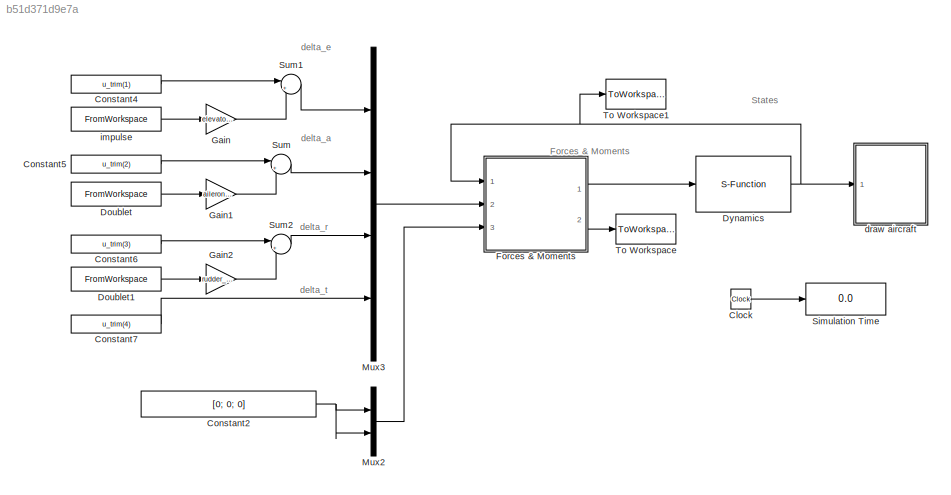
MODEL slx_b51d371d9e7a
KIND model
CONFIG AbsTol = auto
CONFIG EnableMultiTasking = on
CONFIG FixedStep = P.Ts/10
CONFIG InitFcn = param_chap5
CONFIG MaxStep = auto
CONFIG MinStep = auto
CONFIG RelTol = 1e-3
CONFIG SampleTimeConstraint = Unconstrained
CONFIG SolverName = ode45
CONFIG StartTime = 0.0
CONFIG StopTime = 10000
BLOCK [Clock] Clock
BLOCK [Constant] Constant2
  Value = [0; 0; 0]
BLOCK [Constant] Constant4
  Value = u_trim(1)
BLOCK [Constant] Constant5
  Value = u_trim(2)
BLOCK [Constant] Constant6
  Value = u_trim(3)
BLOCK [Constant] Constant7
  Value = u_trim(4)
BLOCK [FromWorkspace] Doublet
  VariableName = [0, 0; 1.0, 0; 1.01, 35; 1.02, 35; 1.03, -35; 1.04, -35; 1.05, 0; 1.06, 0]
BLOCK [FromWorkspace] Doublet1
  VariableName = [0, 0; 10.0, 0; 10.01, 0.1; 10.5, 0.1; 10.51, -0.1; 11.0, -0.1; 11.01, 0; 11.5, 0]
BLOCK [S-Function] Dynamics
  EnableBusSupport = off
  FunctionName = mav_dynamics
  Parameters = P
  Ports = [1, 1]
  SFcnIsStateOwnerBlock = off
  SFunctionDeploymentMode = off
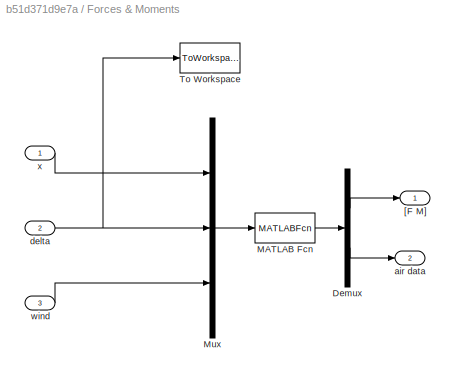
BLOCK [SubSystem] Forces & Moments
  Ports = [3, 2]
  RequestExecContextInheritance = off
BLOCK [Demux] Forces & Moments/Demux
  Outputs = [6;6]
  Ports = [1, 2]
BLOCK [MATLABFcn] Forces & Moments/MATLAB Fcn
  MATLABFcn = forces_moments(u(1:12),u(13:16),u(17:22),P)
  OutputDimensions = 12
  Ports = [1, 1]
BLOCK [Mux] Forces & Moments/Mux
  DisplayOption = bar
  Inputs = 3
  Ports = [3, 1]
BLOCK [ToWorkspace] Forces & Moments/To Workspace
  FixptAsFi = on
  MaxDataPoints = inf
  Ports = [1]
  SampleTime = -1
  SaveFormat = Timeseries
  VariableName = delta
BLOCK [Outport] Forces & Moments/[F M]
  VectorParamsAs1DForOutWhenUnconnected = off
BLOCK [Outport] Forces & Moments/air data
  Port = 2
  VectorParamsAs1DForOutWhenUnconnected = off
BLOCK [Inport] Forces & Moments/delta
  Port = 2
BLOCK [Inport] Forces & Moments/wind
  Port = 3
BLOCK [Inport] Forces & Moments/x
BLOCK [Gain] Gain
  Gain = elevator_impulse_enable
BLOCK [Gain] Gain1
  Gain = aileron_doublet_enable
BLOCK [Gain] Gain2
  Gain = rudder_doublet_enable
BLOCK [Mux] Mux2
  DisplayOption = bar
  Inputs = 2
  Ports = [2, 1]
BLOCK [Mux] Mux3
  DisplayOption = bar
  Ports = [4, 1]
BLOCK [Display] Simulation Time
  Decimation = 1
  Ports = [1]
BLOCK [Sum] Sum
  Inputs = |++
  Ports = [2, 1]
BLOCK [Sum] Sum1
  Inputs = |++
  Ports = [2, 1]
BLOCK [Sum] Sum2
  Inputs = |++
  Ports = [2, 1]
BLOCK [ToWorkspace] To Workspace
  FixptAsFi = on
  MaxDataPoints = inf
  Ports = [1]
  SampleTime = -1
  SaveFormat = Timeseries
  VariableName = airdata
BLOCK [ToWorkspace] To Workspace1
  FixptAsFi = on
  MaxDataPoints = inf
  Ports = [1]
  SampleTime = -1
  SaveFormat = Timeseries
  VariableName = states
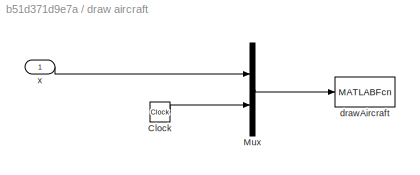
BLOCK [SubSystem] draw aircraft
  Ports = [1]
  RequestExecContextInheritance = off
BLOCK [Clock] draw aircraft/Clock
BLOCK [Mux] draw aircraft/Mux
  DisplayOption = bar
  Inputs = 2
  Ports = [2, 1]
BLOCK [MATLABFcn] draw aircraft/drawAircraft
  MATLABFcn = drawAircraft(u)
  OutputDimensions = 0
  Ports = [1]
  SampleTime = 0.1
BLOCK [Inport] draw aircraft/x
BLOCK [FromWorkspace] impulse
  VariableName = [0, 0; 10.0, 0; 10.01, 0.2; 10.5, 0.2; 10.51, 0.0; 13.0, 0.0]
ANNOTATION (root): Forces & Moments
ANNOTATION (root): States
ANNOTATION (root): delta_a
ANNOTATION (root): delta_e
ANNOTATION (root): delta_r
ANNOTATION (root): delta_t
LINE Clock:1 -> Simulation Time:1
NET Constant2:1 -> Mux2:1, Mux2:2
LINE Constant4:1 -> Sum1:1
LINE Constant5:1 -> Sum:1
LINE Constant6:1 -> Sum2:1
LINE Constant7:1 -> Mux3:4
LINE Doublet1:1 -> Gain2:1
LINE Doublet:1 -> Gain1:1
NET Dynamics:1 -> Forces & Moments:1, To Workspace1:1, draw aircraft:1
LINE Forces & Moments/Demux:1 -> Forces & Moments/[F M]:1
LINE Forces & Moments/Demux:2 -> Forces & Moments/air data:1
LINE Forces & Moments/MATLAB Fcn:1 -> Forces & Moments/Demux:1
LINE Forces & Moments/Mux:1 -> Forces & Moments/MATLAB Fcn:1
NET Forces & Moments/delta:1 -> Forces & Moments/Mux:2, Forces & Moments/To Workspace:1
LINE Forces & Moments/wind:1 -> Forces & Moments/Mux:3
LINE Forces & Moments/x:1 -> Forces & Moments/Mux:1
LINE Forces & Moments:1 -> Dynamics:1
LINE Forces & Moments:2 -> To Workspace:1
LINE Gain1:1 -> Sum:2
LINE Gain2:1 -> Sum2:2
LINE Gain:1 -> Sum1:2
LINE Mux2:1 -> Forces & Moments:3
LINE Mux3:1 -> Forces & Moments:2
LINE Sum1:1 -> Mux3:1
LINE Sum2:1 -> Mux3:3
LINE Sum:1 -> Mux3:2
LINE draw aircraft/Clock:1 -> draw aircraft/Mux:2
LINE draw aircraft/Mux:1 -> draw aircraft/drawAircraft:1
LINE draw aircraft/x:1 -> draw aircraft/Mux:1
LINE impulse:1 -> Gain:1
note: NET lines group one-source signal fan-out (src -> all destinations, sorted); 1:1 wires keep LINE
